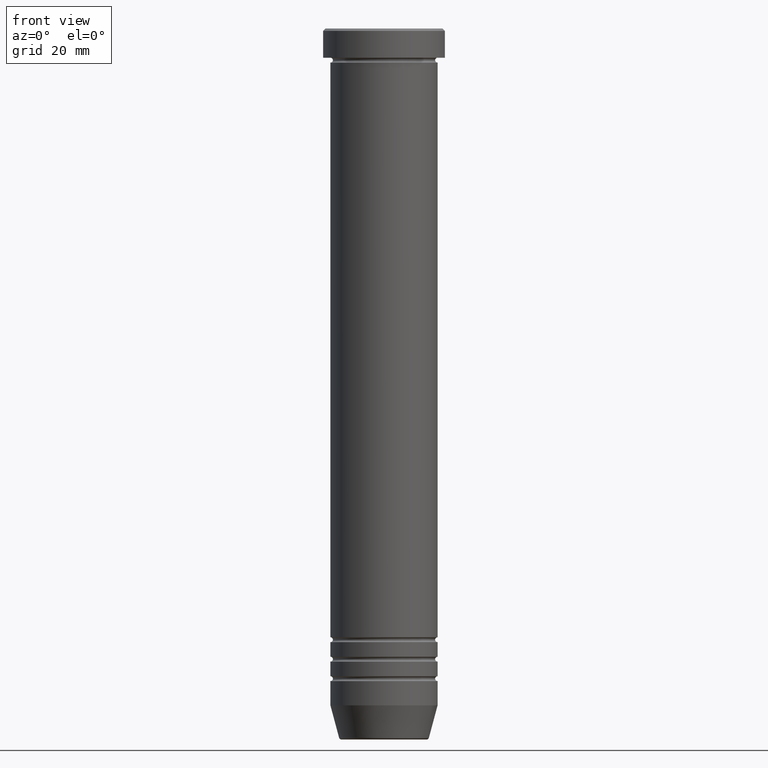
[diagram: clean part render]
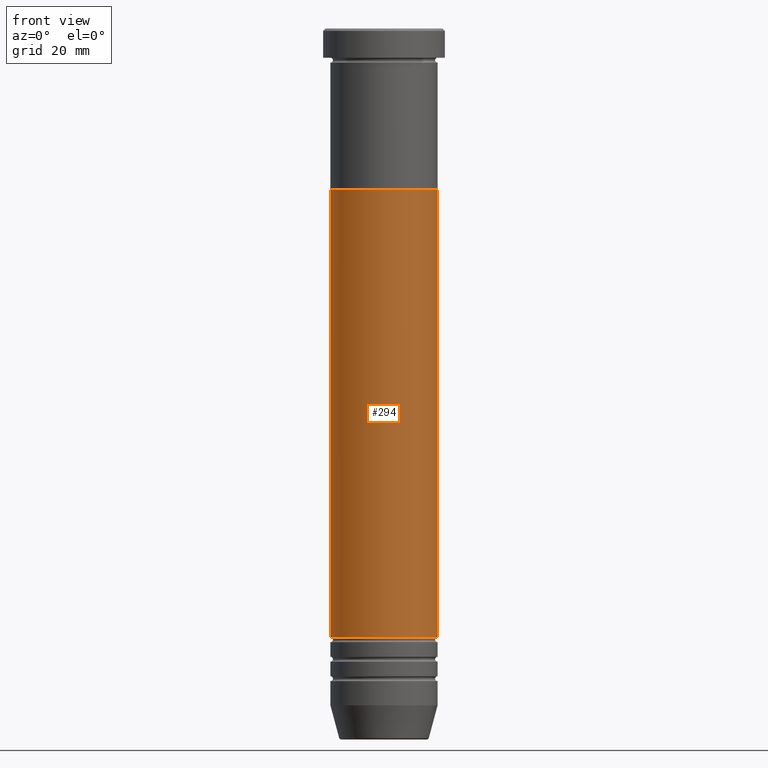
[diagram: same view with one face highlighted and labeled with its STEP entity id]
A machine part, front view. The second image highlights one B-rep face of the part: STEP entity #294.
In plain terms, the highlighted cylindrical surface (partial cylindrical patch) has radius 11 mm, axis along (-0, -0, 1).
Its self-contained STEP definition (entity closure, byte-faithful):
#35 = CARTESIAN_POINT ( 'NONE',  ( 0.000000000000000000, 0.000000000000000000, -33.00000000000000000 ) ) ;
#51 = CARTESIAN_POINT ( 'NONE',  ( 0.000000000000000000, 0.000000000000000000, 0.000000000000000000 ) ) ;
#65 = FACE_OUTER_BOUND ( 'NONE', #135, .T. ) ;
#75 = AXIS2_PLACEMENT_3D ( 'NONE', #948, #572, #505 ) ;
#84 = CARTESIAN_POINT ( 'NONE',  ( 10.99999999999999645, 0.000000000000000000, 0.000000000000000000 ) ) ;
#103 = LINE ( 'NONE', #455, #614 ) ;
#128 = CARTESIAN_POINT ( 'NONE',  ( -10.99999999999999822, 1.347111479062088405E-15, -33.00000000000000000 ) ) ;
#135 = EDGE_LOOP ( 'NONE', ( #863, #869, #758, #601 ) ) ;
#164 = VERTEX_POINT ( 'NONE', #292 ) ;
#209 = EDGE_CURVE ( 'NONE', #164, #710, #277, .T. ) ;
#230 = VERTEX_POINT ( 'NONE', #128 ) ;
#277 = CIRCLE ( 'NONE', #75, 10.99999999999999467 ) ;
#292 = CARTESIAN_POINT ( 'NONE',  ( -10.99999999999999467, 1.347111479062087813E-15, -125.0000000000000284 ) ) ;
#294 = ADVANCED_FACE ( 'NONE', ( #65 ), #567, .T. ) ;
#364 = DIRECTION ( 'NONE',  ( -0.000000000000000000, -0.000000000000000000, 1.000000000000000000 ) ) ;
#396 = DIRECTION ( 'NONE',  ( -0.000000000000000000, -0.000000000000000000, 1.000000000000000000 ) ) ;
#420 = EDGE_CURVE ( 'NONE', #710, #469, #961, .T. ) ;
#455 = CARTESIAN_POINT ( 'NONE',  ( -10.99999999999999645, 1.347111479062088010E-15, 0.000000000000000000 ) ) ;
#461 = CARTESIAN_POINT ( 'NONE',  ( 11.00000000000000000, 0.000000000000000000, -33.00000000000000000 ) ) ;
#469 = VERTEX_POINT ( 'NONE', #461 ) ;
#505 = DIRECTION ( 'NONE',  ( 1.000000000000000000, 0.000000000000000000, 0.000000000000000000 ) ) ;
#538 = VECTOR ( 'NONE', #979, 1000.000000000000000 ) ;
#541 = AXIS2_PLACEMENT_3D ( 'NONE', #35, #730, #636 ) ;
#567 = CYLINDRICAL_SURFACE ( 'NONE', #1021, 10.99999999999999645 ) ;
#572 = DIRECTION ( 'NONE',  ( -0.000000000000000000, -0.000000000000000000, 1.000000000000000000 ) ) ;
#601 = ORIENTED_EDGE ( 'NONE', *, *, #957, .F. ) ;
#614 = VECTOR ( 'NONE', #364, 1000.000000000000000 ) ;
#636 = DIRECTION ( 'NONE',  ( 1.000000000000000000, 0.000000000000000000, 0.000000000000000000 ) ) ;
#710 = VERTEX_POINT ( 'NONE', #845 ) ;
#730 = DIRECTION ( 'NONE',  ( -0.000000000000000000, -0.000000000000000000, 1.000000000000000000 ) ) ;
#752 = DIRECTION ( 'NONE',  ( 1.000000000000000000, 0.000000000000000000, 0.000000000000000000 ) ) ;
#758 = ORIENTED_EDGE ( 'NONE', *, *, #420, .T. ) ;
#845 = CARTESIAN_POINT ( 'NONE',  ( 10.99999999999999467, 0.000000000000000000, -125.0000000000000284 ) ) ;
#863 = ORIENTED_EDGE ( 'NONE', *, *, #1055, .F. ) ;
#869 = ORIENTED_EDGE ( 'NONE', *, *, #209, .T. ) ;
#948 = CARTESIAN_POINT ( 'NONE',  ( 0.000000000000000000, 0.000000000000000000, -125.0000000000000284 ) ) ;
#957 = EDGE_CURVE ( 'NONE', #230, #469, #1118, .T. ) ;
#961 = LINE ( 'NONE', #84, #538 ) ;
#979 = DIRECTION ( 'NONE',  ( -0.000000000000000000, -0.000000000000000000, 1.000000000000000000 ) ) ;
#1021 = AXIS2_PLACEMENT_3D ( 'NONE', #51, #396, #752 ) ;
#1055 = EDGE_CURVE ( 'NONE', #164, #230, #103, .T. ) ;
#1118 = CIRCLE ( 'NONE', #541, 11.00000000000000000 ) ;